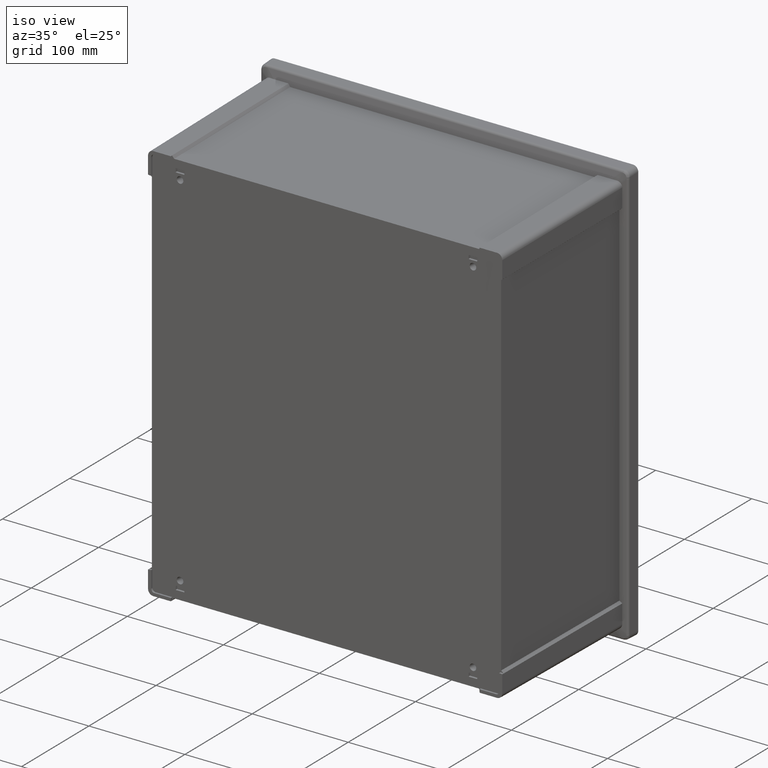
[diagram: clean part render]
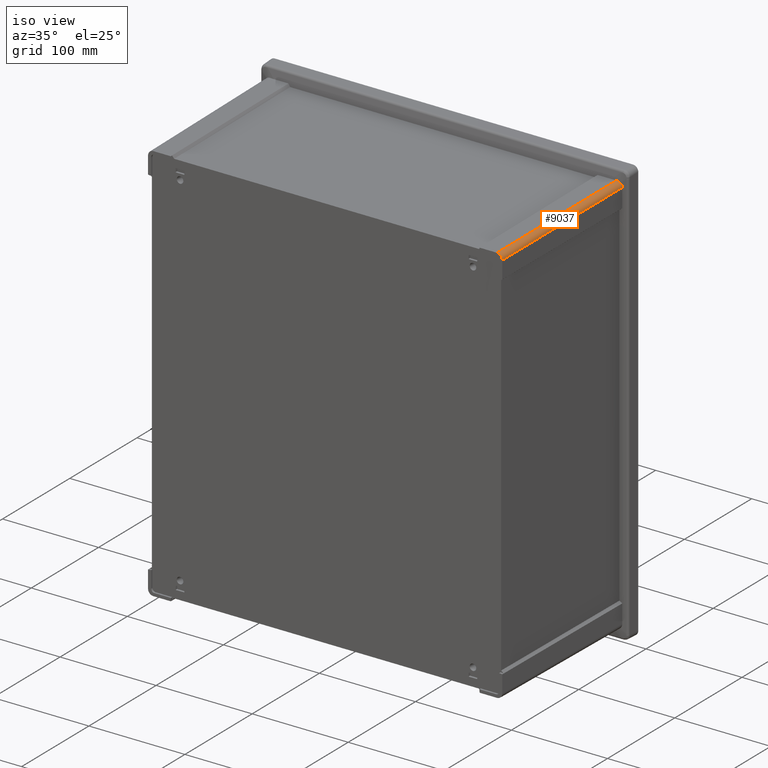
[diagram: same view with one face highlighted and labeled with its STEP entity id]
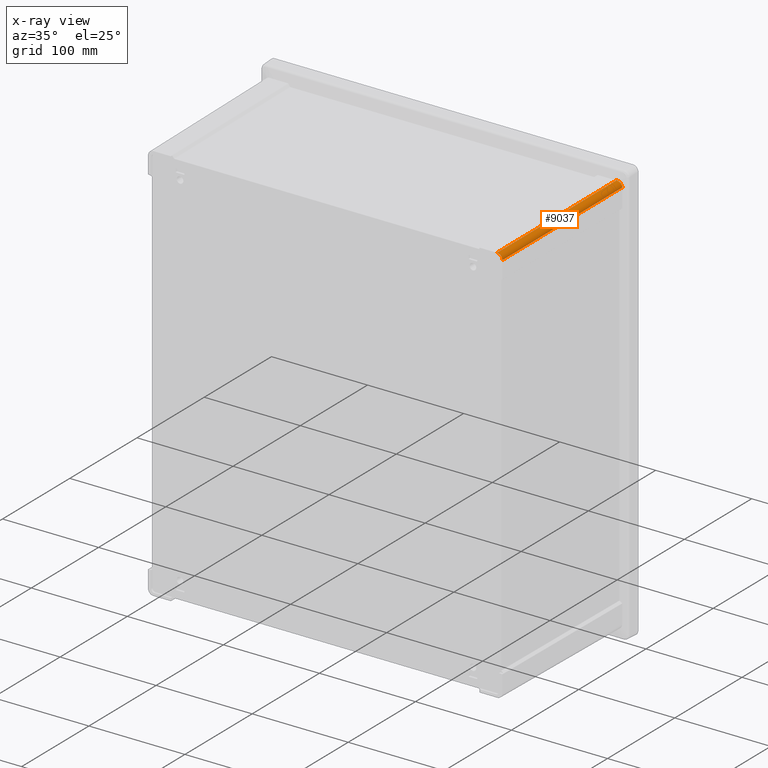
[diagram: x-ray of the same camera — body ghosted, the highlighted face saturated]
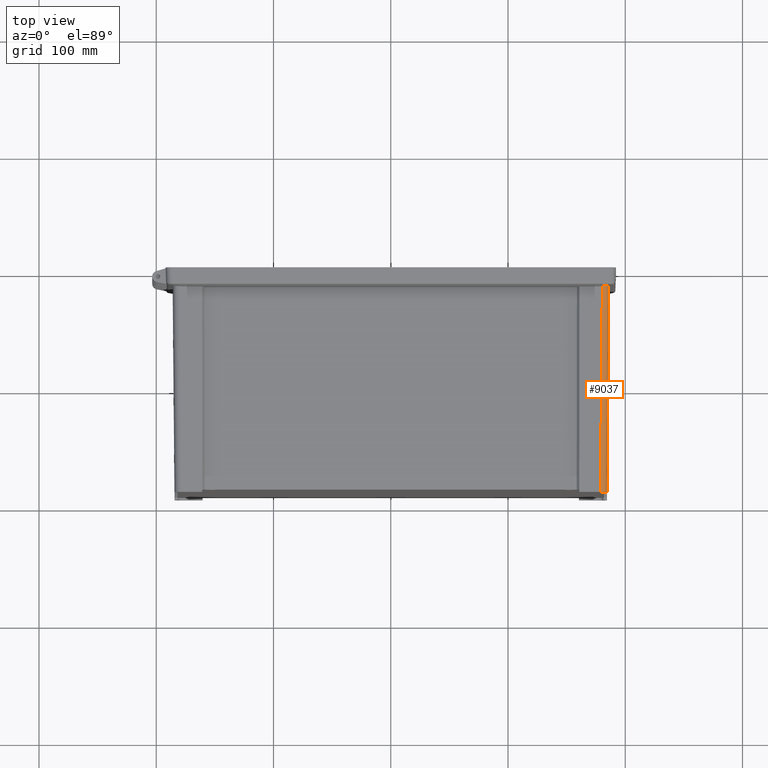
[diagram: same view with one face highlighted and labeled with its STEP entity id]
A machine part, iso view. The second image highlights one B-rep face of the part: STEP entity #9037.
The next image is the same camera in x-ray: the body ghosted, the highlighted face saturated — about 0% of this face is hidden behind the body in this view.
A second angle (top view) of the same face is appended — the face is thin or edge-on in the first view.
In plain terms, the highlighted cylindrical surface (edge-blend (fillet) strip) has radius 5.5 mm, axis along (0.0087, 0.9999, 0.0087).
Its self-contained STEP definition (entity closure, byte-faithful):
#103 = DIRECTION ( 'NONE',  ( 0.008726203243944198300, 0.9999238504775704900, 0.008726203243944236400 ) ) ;
#1531 = CARTESIAN_POINT ( 'NONE',  ( 184.4296775048489400, -191.4000000000000100, 203.9298869279958800 ) ) ;
#2004 = CARTESIAN_POINT ( 'NONE',  ( 184.8494450719406400, -15.41598042782445600, 208.7869165057000500 ) ) ;
#2044 = AXIS2_PLACEMENT_3D ( 'NONE', #3812, #4896, #15165 ) ;
#2951 = CARTESIAN_POINT ( 'NONE',  ( 178.9298869279959900, -191.4000000000000100, 209.4296775048487700 ) ) ;
#3249 = CARTESIAN_POINT ( 'NONE',  ( 178.9298869279959900, -191.4000000000000100, 209.4296775048487700 ) ) ;
#3346 = CARTESIAN_POINT ( 'NONE',  ( 182.5378153881771400, -15.74699823450821300, 210.5734923160550800 ) ) ;
#3553 = EDGE_CURVE ( 'NONE', #14357, #11420, #8598, .T. ) ;
#3812 = CARTESIAN_POINT ( 'NONE',  ( 180.4789106329337200, -13.85146868764179100, 205.4789106329335800 ) ) ;
#3904 = DIRECTION ( 'NONE',  ( -0.008726203243944196500, -0.9999238504775704900, -0.008726203243944236400 ) ) ;
#3939 = CARTESIAN_POINT ( 'NONE',  ( 185.9675407919648900, -15.17832184595813100, 205.4677502151117800 ) ) ;
#4232 = VERTEX_POINT ( 'NONE', #15419 ) ;
#4312 = CYLINDRICAL_SURFACE ( 'NONE', #2044, 5.499999999999988500 ) ;
#4596 = ORIENTED_EDGE ( 'NONE', *, *, #16229, .T. ) ;
#4896 = DIRECTION ( 'NONE',  ( 0.008726203243944198300, 0.9999238504775704900, 0.008726203243944236400 ) ) ;
#4992 = CARTESIAN_POINT ( 'NONE',  ( 185.9453149413547200, -17.72515206535428000, 205.4455243645016700 ) ) ;
#5562 = ORIENTED_EDGE ( 'NONE', *, *, #3553, .F. ) ;
#5629 = CARTESIAN_POINT ( 'NONE',  ( 182.1516404672780700, -191.4000000000000100, 209.4296775048487700 ) ) ;
#6630 = EDGE_LOOP ( 'NONE', ( #5562, #14228, #7106, #4596, #14943 ) ) ;
#7106 = ORIENTED_EDGE ( 'NONE', *, *, #13289, .F. ) ;
#7246 = CARTESIAN_POINT ( 'NONE',  ( 181.3095735282357500, -15.85973794767241400, 210.9125559187357100 ) ) ;
#7303 = CARTESIAN_POINT ( 'NONE',  ( 180.8882911834568000, -15.89505826412069700, 210.9612859280026400 ) ) ;
#7556 = FACE_OUTER_BOUND ( 'NONE', #6630, .T. ) ;
#7990 = EDGE_CURVE ( 'NONE', #4232, #14357, #12203, .T. ) ;
#8598 =( BOUNDED_CURVE ( )  B_SPLINE_CURVE ( 3, ( #10664, #12057, #5629, #2951 ),
 .UNSPECIFIED., .F., .F. ) 
 B_SPLINE_CURVE_WITH_KNOTS ( ( 4, 4 ),
 ( 5.497825219993083000, 7.068545394366094700 ),
 .UNSPECIFIED. ) 
 CURVE ( )  GEOMETRIC_REPRESENTATION_ITEM ( )  RATIONAL_B_SPLINE_CURVE ( ( 1.000000000000000000, 0.8047558030806129000, 0.8047558030806129000, 1.000000000000000000 ) ) 
 REPRESENTATION_ITEM ( '' )  );
#8660 = CARTESIAN_POINT ( 'NONE',  ( 180.4611737478569200, -15.93191035133308200, 210.9609643247096900 ) ) ;
#8922 = CARTESIAN_POINT ( 'NONE',  ( 180.4789106329337200, -13.89946463288284700, 210.9787012097865200 ) ) ;
#9037 = ADVANCED_FACE ( 'NONE', ( #7556 ), #4312, .T. ) ;
#9149 = B_SPLINE_CURVE_WITH_KNOTS ( 'NONE', 3,
 ( #16130, #11099, #16179, #9951, #13734, #3346, #15032, #7246, #7303, #8660 ),
 .UNSPECIFIED., .F., .F.,
 ( 4, 2, 2, 2, 4 ),
 ( 2.780973288783981700E-017, 0.001267848651906174700, 0.002535697303812321600, 0.003803545955718468500, 0.005071394607624615500 ),
 .UNSPECIFIED. ) ;
#9861 = LINE ( 'NONE', #8922, #10262 ) ;
#9951 = CARTESIAN_POINT ( 'NONE',  ( 183.6528740278698700, -15.61861258000944700, 209.9645107338429300 ) ) ;
#10262 = VECTOR ( 'NONE', #103, 1000.000000000000000 ) ;
#10311 = CARTESIAN_POINT ( 'NONE',  ( 184.8494450719406400, -15.41598042782445600, 208.7869165057000500 ) ) ;
#10664 = CARTESIAN_POINT ( 'NONE',  ( 184.4296775048489400, -191.4000000000000100, 203.9298869279958800 ) ) ;
#11099 = CARTESIAN_POINT ( 'NONE',  ( 184.5921602001369600, -15.47066801554474900, 209.1254087192594100 ) ) ;
#11420 = VERTEX_POINT ( 'NONE', #3249 ) ;
#11433 = VERTEX_POINT ( 'NONE', #2004 ) ;
#11573 = CARTESIAN_POINT ( 'NONE',  ( 185.5814359832609200, -15.26039095654050600, 207.8238858302422300 ) ) ;
#11780 = VECTOR ( 'NONE', #3904, 1000.000000000000000 ) ;
#12057 = CARTESIAN_POINT ( 'NONE',  ( 184.4296775048489100, -191.4000000000000100, 207.1516404672780400 ) ) ;
#12203 = LINE ( 'NONE', #4992, #11780 ) ;
#12594 =( BOUNDED_CURVE ( )  B_SPLINE_CURVE ( 3, ( #10311, #11573, #14162, #3939 ),
 .UNSPECIFIED., .F., .F. ) 
 B_SPLINE_CURVE_WITH_KNOTS ( ( 4, 4 ),
 ( 5.674198576167068400, 6.322526357496638400 ),
 .UNSPECIFIED. ) 
 CURVE ( )  GEOMETRIC_REPRESENTATION_ITEM ( )  RATIONAL_B_SPLINE_CURVE ( ( 1.000000000000000000, 0.9652782481327492100, 0.9652782481327492100, 1.000000000000000000 ) ) 
 REPRESENTATION_ITEM ( '' )  );
#13289 = EDGE_CURVE ( 'NONE', #11433, #4232, #12594, .T. ) ;
#13326 = EDGE_CURVE ( 'NONE', #11420, #15278, #9861, .T. ) ;
#13734 = CARTESIAN_POINT ( 'NONE',  ( 183.2920237207613900, -15.66403469148474400, 210.1989809831881900 ) ) ;
#14162 = CARTESIAN_POINT ( 'NONE',  ( 185.9675407919649500, -15.17832184595812700, 206.6776994682583400 ) ) ;
#14228 = ORIENTED_EDGE ( 'NONE', *, *, #7990, .F. ) ;
#14357 = VERTEX_POINT ( 'NONE', #1531 ) ;
#14943 = ORIENTED_EDGE ( 'NONE', *, *, #13326, .F. ) ;
#15032 = CARTESIAN_POINT ( 'NONE',  ( 182.1399299418479800, -15.78523649444206900, 210.7175081007526700 ) ) ;
#15165 = DIRECTION ( 'NONE',  ( 0.0000000000000000000, -0.008726535498373816700, 0.9999619230641713100 ) ) ;
#15278 = VERTEX_POINT ( 'NONE', #16502 ) ;
#15419 = CARTESIAN_POINT ( 'NONE',  ( 185.9675407919648900, -15.17832184595813100, 205.4677502151117800 ) ) ;
#16130 = CARTESIAN_POINT ( 'NONE',  ( 184.8494450719406400, -15.41598042782445600, 208.7869165057000500 ) ) ;
#16179 = CARTESIAN_POINT ( 'NONE',  ( 184.3009426615564300, -15.52207892145244000, 209.4281575681194200 ) ) ;
#16229 = EDGE_CURVE ( 'NONE', #11433, #15278, #9149, .T. ) ;
#16502 = CARTESIAN_POINT ( 'NONE',  ( 180.4611737478569200, -15.93191035133308200, 210.9609643247096900 ) ) ;